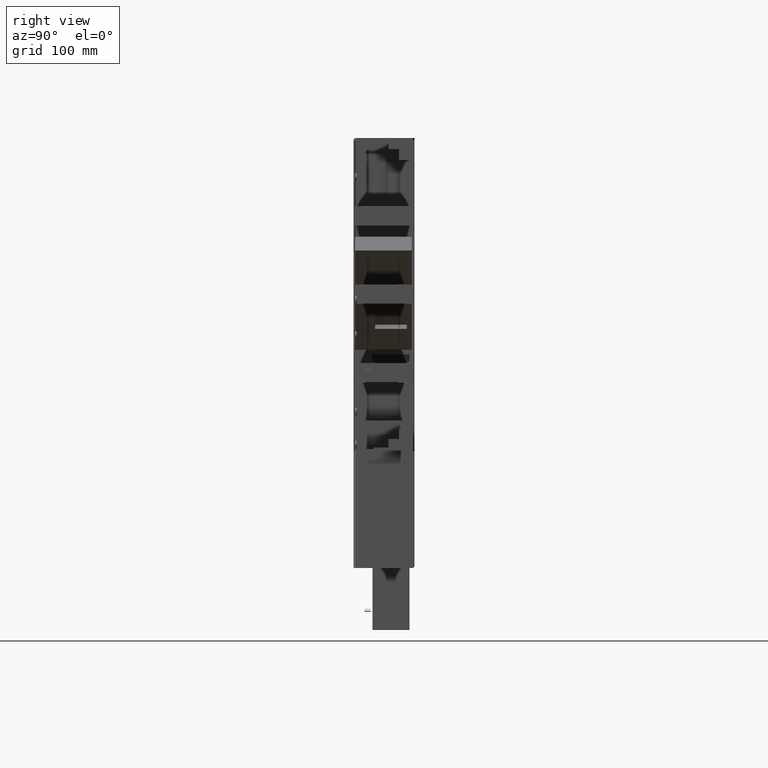
[diagram: clean part render]
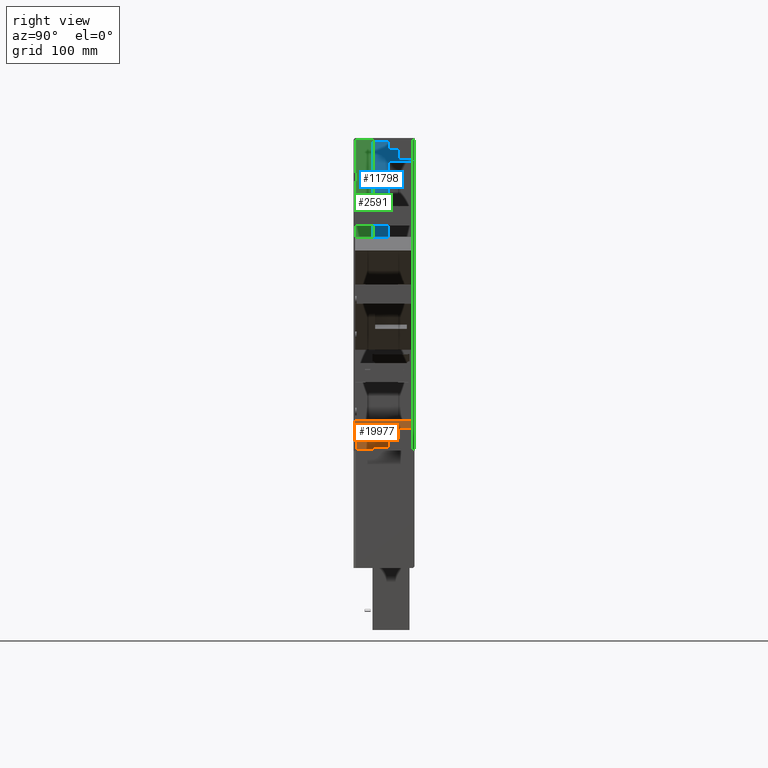
[diagram: same view with three faces highlighted in distinct colors, each labeled with its STEP entity id]
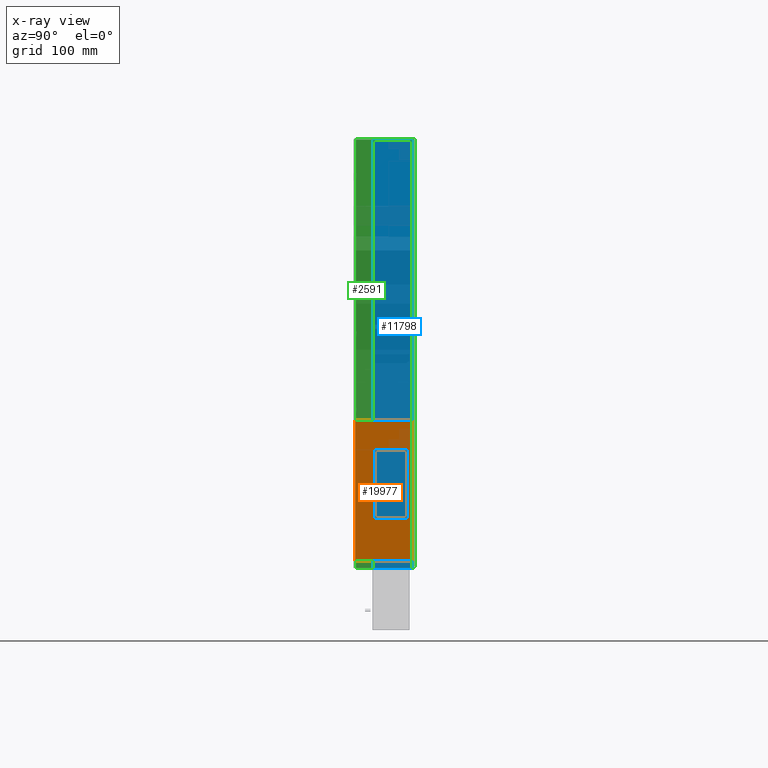
[diagram: x-ray of the same camera — body ghosted, the three highlighted faces saturated]
A machine part, right view with three faces highlighted in distinct colors.
The next image is the same camera in x-ray (body ghosted, the three faces saturated) — at least one of them is partly hidden behind the body in this view.
Their STEP definitions:

[orange] entity #19977 — the highlighted planar face has unit normal (-1, 0, 0).
#19758=DIRECTION('',(0.E0,0.E0,-1.E0));
#19759=VECTOR('',#19758,8.7E1);
#19760=CARTESIAN_POINT('',(-1.26E1,2.57E1,1.2475E2));
#19761=LINE('',#19760,#19759);
#19765=DIRECTION('',(0.E0,-1.E0,0.E0));
#19766=VECTOR('',#19765,4.05E1);
#19767=CARTESIAN_POINT('',(-1.26E1,6.62E1,1.2475E2));
#19768=LINE('',#19767,#19766);
#19772=DIRECTION('',(0.E0,0.E0,1.E0));
#19773=VECTOR('',#19772,8.7E1);
#19774=CARTESIAN_POINT('',(-1.26E1,6.62E1,3.775E1));
#19775=LINE('',#19774,#19773);
#19779=DIRECTION('',(0.E0,1.E0,0.E0));
#19780=VECTOR('',#19779,4.05E1);
#19781=CARTESIAN_POINT('',(-1.26E1,2.57E1,3.775E1));
#19782=LINE('',#19781,#19780);
#19786=DIRECTION('',(0.E0,1.E0,0.E0));
#19787=VECTOR('',#19786,7.250471515675E1);
#19788=CARTESIAN_POINT('',(-1.26E1,-4.715156749327E-3,0.E0));
#19789=LINE('',#19788,#19787);
#19793=DIRECTION('',(0.E0,0.E0,1.E0));
#19794=VECTOR('',#19793,1.796E2);
#19795=CARTESIAN_POINT('',(-1.26E1,7.25E1,0.E0));
#19796=LINE('',#19795,#19794);
#19800=DIRECTION('',(0.E0,-1.E0,0.E0));
#19801=VECTOR('',#19800,7.250471515675E1);
#19802=CARTESIAN_POINT('',(-1.26E1,7.25E1,1.796E2));
#19803=LINE('',#19802,#19801);
#19807=DIRECTION('',(0.E0,0.E0,-1.E0));
#19808=VECTOR('',#19807,1.796E2);
#19809=CARTESIAN_POINT('',(-1.26E1,-4.715156749327E-3,1.796E2));
#19810=LINE('',#19809,#19808);
#19842=CARTESIAN_POINT('',(-1.26E1,7.25E1,1.796E2));
#19843=CARTESIAN_POINT('',(-1.26E1,-4.715156749327E-3,1.796E2));
#19844=VERTEX_POINT('',#19842);
#19845=VERTEX_POINT('',#19843);
#19858=CARTESIAN_POINT('',(-1.26E1,2.57E1,1.2475E2));
#19859=CARTESIAN_POINT('',(-1.26E1,2.57E1,3.775E1));
#19860=VERTEX_POINT('',#19858);
#19861=VERTEX_POINT('',#19859);
#19862=CARTESIAN_POINT('',(-1.26E1,6.62E1,3.775E1));
#19863=VERTEX_POINT('',#19862);
#19864=CARTESIAN_POINT('',(-1.26E1,6.62E1,1.2475E2));
#19865=VERTEX_POINT('',#19864);
#19870=CARTESIAN_POINT('',(-1.26E1,-4.715156749327E-3,0.E0));
#19871=CARTESIAN_POINT('',(-1.26E1,7.25E1,0.E0));
#19872=VERTEX_POINT('',#19870);
#19873=VERTEX_POINT('',#19871);
#19956=CARTESIAN_POINT('',(-1.26E1,0.E0,0.E0));
#19957=DIRECTION('',(1.E0,0.E0,0.E0));
#19958=DIRECTION('',(0.E0,0.E0,-1.E0));
#19959=AXIS2_PLACEMENT_3D('',#19956,#19957,#19958);
#19960=PLANE('',#19959);
#19962=ORIENTED_EDGE('',*,*,#19961,.T.);
#19964=ORIENTED_EDGE('',*,*,#19963,.T.);
#19966=ORIENTED_EDGE('',*,*,#19965,.T.);
#19968=ORIENTED_EDGE('',*,*,#19967,.T.);
#19969=EDGE_LOOP('',(#19962,#19964,#19966,#19968));
#19970=FACE_OUTER_BOUND('',#19969,.F.);
#19971=ORIENTED_EDGE('',*,*,#19908,.F.);
#19972=ORIENTED_EDGE('',*,*,#19923,.F.);
#19973=ORIENTED_EDGE('',*,*,#19937,.F.);
#19974=ORIENTED_EDGE('',*,*,#19950,.F.);
#19975=EDGE_LOOP('',(#19971,#19972,#19973,#19974));
#19976=FACE_BOUND('',#19975,.F.);
#19908=EDGE_CURVE('',#19860,#19861,#19761,.T.);
#19923=EDGE_CURVE('',#19865,#19860,#19768,.T.);
#19937=EDGE_CURVE('',#19863,#19865,#19775,.T.);
#19950=EDGE_CURVE('',#19861,#19863,#19782,.T.);
#19961=EDGE_CURVE('',#19872,#19873,#19789,.T.);
#19963=EDGE_CURVE('',#19873,#19844,#19796,.T.);
#19965=EDGE_CURVE('',#19844,#19845,#19803,.T.);
#19967=EDGE_CURVE('',#19845,#19872,#19810,.T.);
#19977=ADVANCED_FACE('',(#19970,#19976),#19960,.F.);

[blue] entity #11798 — the highlighted planar face has unit normal (1, 0, 0).
#11634=DIRECTION('',(0.E0,1.E0,0.E0));
#11635=VECTOR('',#11634,5.E1);
#11636=CARTESIAN_POINT('',(2.E0,0.E0,-2.735E2));
#11637=LINE('',#11636,#11635);
#11669=DIRECTION('',(0.E0,0.E0,1.E0));
#11670=VECTOR('',#11669,5.47E2);
#11671=CARTESIAN_POINT('',(2.E0,5.E1,-2.735E2));
#11672=LINE('',#11671,#11670);
#11676=DIRECTION('',(0.E0,0.E0,1.E0));
#11677=VECTOR('',#11676,5.47E2);
#11678=CARTESIAN_POINT('',(2.E0,0.E0,-2.735E2));
#11679=LINE('',#11678,#11677);
#11704=DIRECTION('',(0.E0,1.E0,0.E0));
#11705=VECTOR('',#11704,5.E1);
#11706=CARTESIAN_POINT('',(2.E0,0.E0,2.735E2));
#11707=LINE('',#11706,#11705);
#11712=CARTESIAN_POINT('',(2.E0,0.E0,-2.735E2));
#11714=VERTEX_POINT('',#11712);
#11715=CARTESIAN_POINT('',(2.E0,5.E1,-2.735E2));
#11716=VERTEX_POINT('',#11715);
#11720=CARTESIAN_POINT('',(2.E0,0.E0,2.735E2));
#11722=VERTEX_POINT('',#11720);
#11723=CARTESIAN_POINT('',(2.E0,5.E1,2.735E2));
#11724=VERTEX_POINT('',#11723);
#11786=CARTESIAN_POINT('',(2.E0,0.E0,-2.735E2));
#11787=DIRECTION('',(1.E0,0.E0,0.E0));
#11788=DIRECTION('',(0.E0,1.E0,0.E0));
#11789=AXIS2_PLACEMENT_3D('',#11786,#11787,#11788);
#11790=PLANE('',#11789);
#11791=ORIENTED_EDGE('',*,*,#11734,.F.);
#11792=ORIENTED_EDGE('',*,*,#11753,.T.);
#11794=ORIENTED_EDGE('',*,*,#11793,.T.);
#11795=ORIENTED_EDGE('',*,*,#11778,.F.);
#11796=EDGE_LOOP('',(#11791,#11792,#11794,#11795));
#11797=FACE_OUTER_BOUND('',#11796,.F.);
#11734=EDGE_CURVE('',#11714,#11716,#11637,.T.);
#11753=EDGE_CURVE('',#11714,#11722,#11679,.T.);
#11778=EDGE_CURVE('',#11716,#11724,#11672,.T.);
#11793=EDGE_CURVE('',#11722,#11724,#11707,.T.);
#11798=ADVANCED_FACE('',(#11797),#11790,.T.);

[green] entity #2591 — the highlighted planar face has unit normal (1, 0, 0).
#909=DIRECTION('',(0.E0,1.E0,0.E0));
#910=VECTOR('',#909,7.3E1);
#911=CARTESIAN_POINT('',(-1.98E2,3.E0,0.E0));
#912=LINE('',#911,#910);
#916=DIRECTION('',(0.E0,0.E0,-1.E0));
#917=VECTOR('',#916,9.999999999998E-1);
#918=CARTESIAN_POINT('',(-1.98E2,3.E0,5.48E2));
#919=LINE('',#918,#917);
#923=DIRECTION('',(0.E0,1.E0,0.E0));
#924=VECTOR('',#923,7.5E1);
#925=CARTESIAN_POINT('',(-1.98E2,3.E0,5.48E2));
#926=LINE('',#925,#924);
#930=DIRECTION('',(0.E0,-7.071067811866E-1,-7.071067811865E-1));
#931=VECTOR('',#930,2.828427124746E0);
#932=CARTESIAN_POINT('',(-1.98E2,7.8E1,2.E0));
#933=LINE('',#932,#931);
#937=DIRECTION('',(0.E0,0.E0,1.E0));
#938=VECTOR('',#937,5.47E2);
#939=CARTESIAN_POINT('',(-1.98E2,3.E0,0.E0));
#940=LINE('',#939,#938);
#965=DIRECTION('',(0.E0,0.E0,1.E0));
#966=VECTOR('',#965,5.46E2);
#967=CARTESIAN_POINT('',(-1.98E2,7.8E1,2.E0));
#968=LINE('',#967,#966);
#1902=CARTESIAN_POINT('',(-1.98E2,7.8E1,2.E0));
#1903=VERTEX_POINT('',#1902);
#1904=CARTESIAN_POINT('',(-1.98E2,7.6E1,0.E0));
#1905=VERTEX_POINT('',#1904);
#1908=CARTESIAN_POINT('',(-1.98E2,3.E0,0.E0));
#1909=VERTEX_POINT('',#1908);
#1976=CARTESIAN_POINT('',(-1.98E2,7.8E1,5.48E2));
#1977=VERTEX_POINT('',#1976);
#2090=CARTESIAN_POINT('',(-1.98E2,3.E0,5.48E2));
#2091=CARTESIAN_POINT('',(-1.98E2,3.E0,5.47E2));
#2092=VERTEX_POINT('',#2090);
#2093=VERTEX_POINT('',#2091);
#2575=CARTESIAN_POINT('',(-1.98E2,3.E0,0.E0));
#2576=DIRECTION('',(1.E0,0.E0,0.E0));
#2577=DIRECTION('',(0.E0,1.E0,0.E0));
#2578=AXIS2_PLACEMENT_3D('',#2575,#2576,#2577);
#2579=PLANE('',#2578);
#2580=ORIENTED_EDGE('',*,*,#2523,.F.);
#2582=ORIENTED_EDGE('',*,*,#2581,.T.);
#2584=ORIENTED_EDGE('',*,*,#2583,.F.);
#2585=ORIENTED_EDGE('',*,*,#2568,.T.);
#2586=ORIENTED_EDGE('',*,*,#2556,.F.);
#2588=ORIENTED_EDGE('',*,*,#2587,.T.);
#2589=EDGE_LOOP('',(#2580,#2582,#2584,#2585,#2586,#2588));
#2590=FACE_OUTER_BOUND('',#2589,.F.);
#2523=EDGE_CURVE('',#2092,#2093,#919,.T.);
#2556=EDGE_CURVE('',#1909,#1905,#912,.T.);
#2568=EDGE_CURVE('',#1903,#1905,#933,.T.);
#2581=EDGE_CURVE('',#2092,#1977,#926,.T.);
#2583=EDGE_CURVE('',#1903,#1977,#968,.T.);
#2587=EDGE_CURVE('',#1909,#2093,#940,.T.);
#2591=ADVANCED_FACE('',(#2590),#2579,.T.);